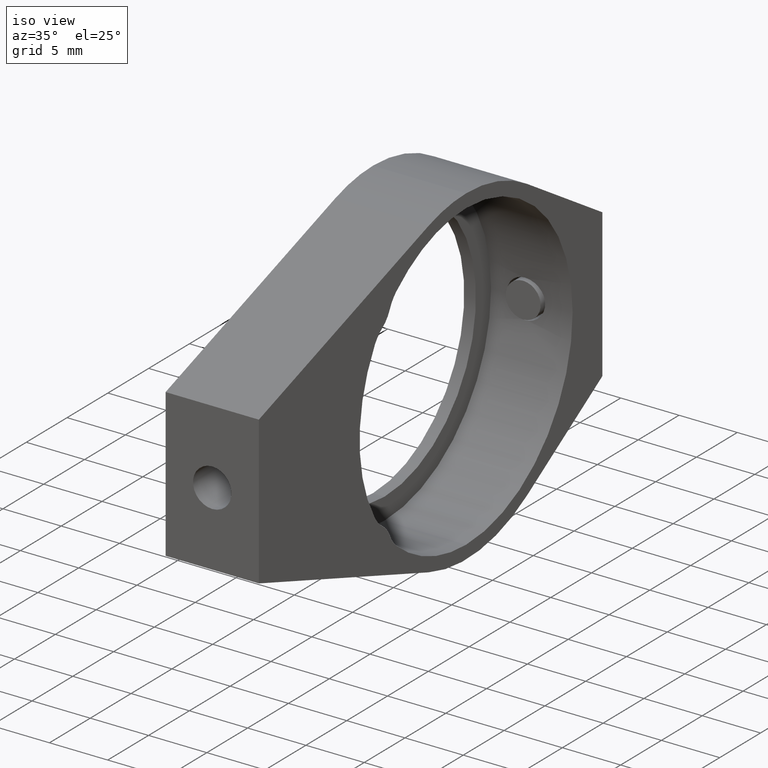
[diagram: clean part render]
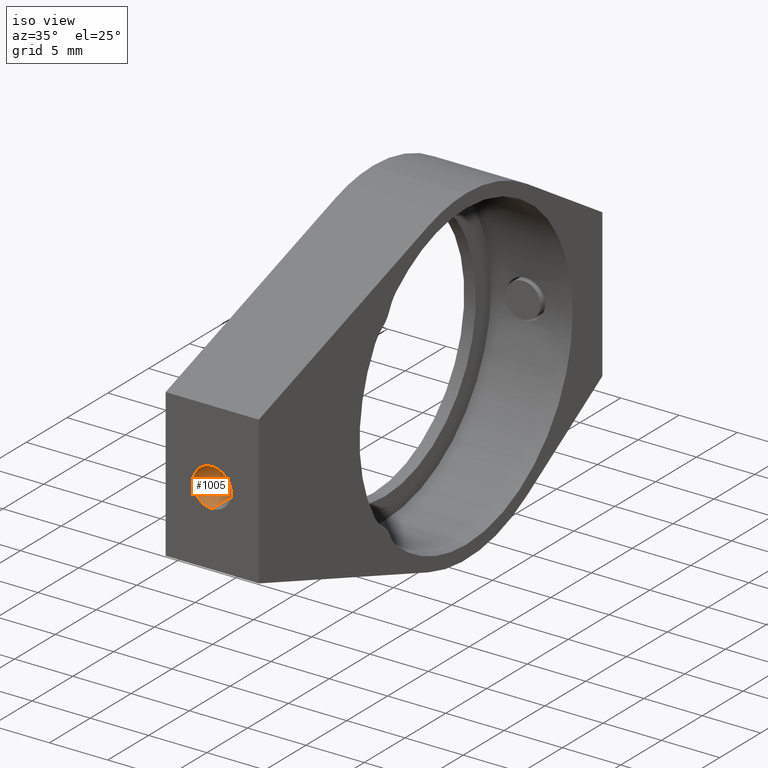
[diagram: same view with one face highlighted and labeled with its STEP entity id]
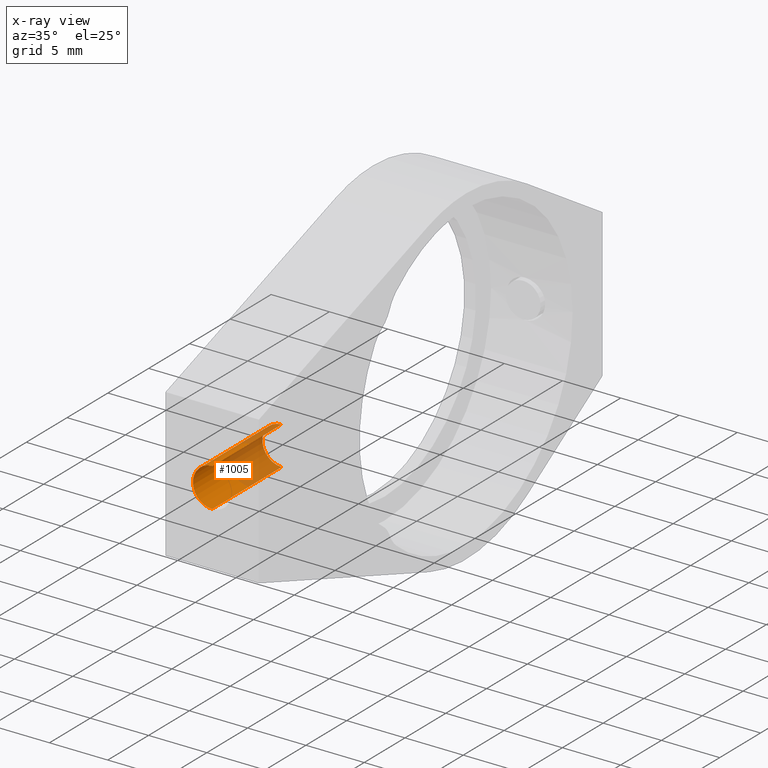
[diagram: x-ray of the same camera — body ghosted, the highlighted face saturated]
A machine part, iso view. The second image highlights one B-rep face of the part: STEP entity #1005.
The next image is the same camera in x-ray: the body ghosted, the highlighted face saturated — about 46% of this face is hidden behind the body in this view.
In plain terms, the highlighted cylindrical surface (edge-blend (fillet) strip) has radius 1.65 mm, axis along (-0, -1, -0).
Its self-contained STEP definition (entity closure, byte-faithful):
#32 = CIRCLE ( 'NONE', #255, 1.649999999999998579 ) ;
#40 = AXIS2_PLACEMENT_3D ( 'NONE', #943, #1400, #716 ) ;
#68 = CARTESIAN_POINT ( 'NONE',  ( -11.54903037869330085, -19.98479816895517658, 43.75000000000000000 ) ) ;
#89 = DIRECTION ( 'NONE',  ( -0.0000000000000000000, -1.000000000000000000, -0.0000000000000000000 ) ) ;
#177 = VERTEX_POINT ( 'NONE', #437 ) ;
#236 = DIRECTION ( 'NONE',  ( -0.0000000000000000000, -1.000000000000000000, -0.0000000000000000000 ) ) ;
#239 = EDGE_CURVE ( 'NONE', #1185, #632, #32, .T. ) ;
#243 = CARTESIAN_POINT ( 'NONE',  ( -11.54903037869330085, -19.98479816895517658, 40.45000000000000284 ) ) ;
#255 = AXIS2_PLACEMENT_3D ( 'NONE', #1002, #89, #547 ) ;
#268 = CYLINDRICAL_SURFACE ( 'NONE', #923, 1.649999999999998579 ) ;
#331 = CARTESIAN_POINT ( 'NONE',  ( -11.54903037869330085, -19.98479816895517658, 43.75000000000000000 ) ) ;
#380 = DIRECTION ( 'NONE',  ( -0.0000000000000000000, -1.000000000000000000, -0.0000000000000000000 ) ) ;
#437 = CARTESIAN_POINT ( 'NONE',  ( -11.54903037869330085, -19.98479816895517658, 40.45000000000000284 ) ) ;
#470 = DIRECTION ( 'NONE',  ( 0.0000000000000000000, 0.0000000000000000000, -1.000000000000000000 ) ) ;
#547 = DIRECTION ( 'NONE',  ( 0.0000000000000000000, 0.0000000000000000000, -1.000000000000000000 ) ) ;
#597 = CARTESIAN_POINT ( 'NONE',  ( -11.54903037869330085, -19.98479816895517658, 42.10000000000000142 ) ) ;
#632 = VERTEX_POINT ( 'NONE', #1307 ) ;
#689 = CIRCLE ( 'NONE', #40, 1.649999999999998579 ) ;
#707 = VECTOR ( 'NONE', #236, 1000.000000000000000 ) ;
#716 = DIRECTION ( 'NONE',  ( 0.0000000000000000000, 0.0000000000000000000, -1.000000000000000000 ) ) ;
#808 = ORIENTED_EDGE ( 'NONE', *, *, #822, .T. ) ;
#822 = EDGE_CURVE ( 'NONE', #1185, #1097, #1260, .T. ) ;
#922 = EDGE_CURVE ( 'NONE', #632, #177, #1488, .T. ) ;
#923 = AXIS2_PLACEMENT_3D ( 'NONE', #597, #380, #470 ) ;
#943 = CARTESIAN_POINT ( 'NONE',  ( -11.54903037869330085, -19.98479816895517658, 42.10000000000000142 ) ) ;
#970 = ORIENTED_EDGE ( 'NONE', *, *, #1440, .T. ) ;
#1002 = CARTESIAN_POINT ( 'NONE',  ( -11.54903037869330085, -11.48479816895517658, 42.10000000000000142 ) ) ;
#1005 = ADVANCED_FACE ( 'NONE', ( #1414 ), #268, .F. ) ;
#1035 = CARTESIAN_POINT ( 'NONE',  ( -11.54903037869330085, -11.48479816895517658, 43.75000000000000000 ) ) ;
#1048 = VECTOR ( 'NONE', #1156, 1000.000000000000000 ) ;
#1097 = VERTEX_POINT ( 'NONE', #68 ) ;
#1156 = DIRECTION ( 'NONE',  ( -0.0000000000000000000, -1.000000000000000000, -0.0000000000000000000 ) ) ;
#1185 = VERTEX_POINT ( 'NONE', #1035 ) ;
#1260 = LINE ( 'NONE', #331, #707 ) ;
#1307 = CARTESIAN_POINT ( 'NONE',  ( -11.54903037869330085, -11.48479816895517658, 40.45000000000000284 ) ) ;
#1387 = ORIENTED_EDGE ( 'NONE', *, *, #922, .F. ) ;
#1400 = DIRECTION ( 'NONE',  ( -0.0000000000000000000, -1.000000000000000000, -0.0000000000000000000 ) ) ;
#1414 = FACE_OUTER_BOUND ( 'NONE', #1485, .T. ) ;
#1433 = ORIENTED_EDGE ( 'NONE', *, *, #239, .F. ) ;
#1440 = EDGE_CURVE ( 'NONE', #1097, #177, #689, .T. ) ;
#1485 = EDGE_LOOP ( 'NONE', ( #1433, #808, #970, #1387 ) ) ;
#1488 = LINE ( 'NONE', #243, #1048 ) ;